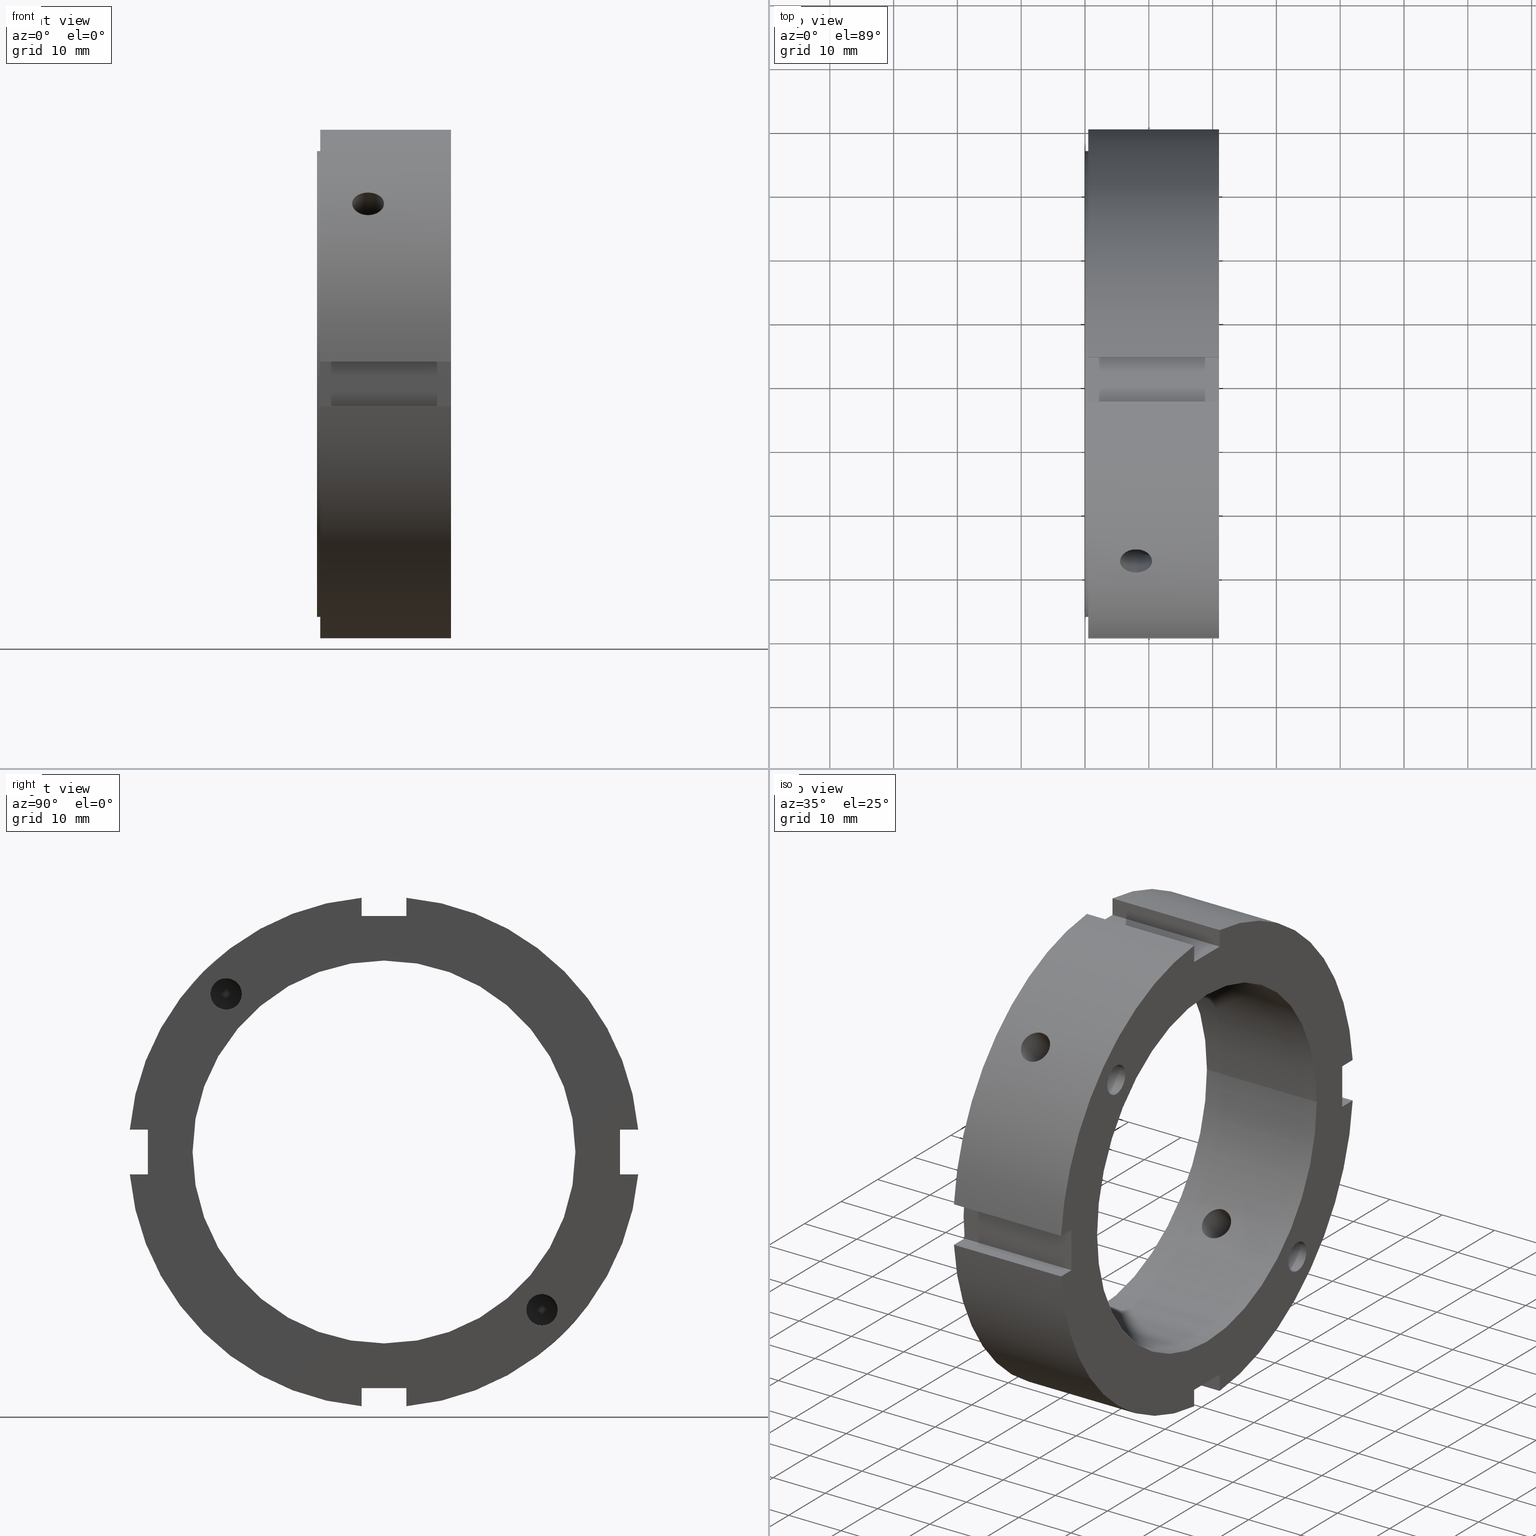
[diagram: canonical four-view strip — front | top / right | iso, engineering-drawing reading convention]
A machine part, canonical four-view strip (front | top / right | iso — engineering-drawing reading convention). The complete STEP part file that produces these views, byte-faithful:
ISO-10303-21;
HEADER;
/****************************************************************
 * Generated by software with PDElib inside                    *
 * PDElib Version v51a, created Wed 11/30/2011                  *
 * ITI Transcendata (http://www.transcendata.com/)              *
 ****************************************************************/
FILE_DESCRIPTION((''),'2;1');
FILE_NAME('C:\\Users\\sugidesign\\Documents\\Fukuda\\3Ddata\\ZMVtype\\FKD ZMV60.stp','2014-02-22T15:25:20',('sugidesign'),(''),'Autodesk Inventor LT ','Autodesk Inventor LT ','');
FILE_SCHEMA(('CONFIG_CONTROL_DESIGN'));
ENDSEC;
DATA;
#5=APPLICATION_CONTEXT('configuration controlled 3D designs of mechanical parts and assemblies');
#6=APPLICATION_PROTOCOL_DEFINITION('International Standard','ap203_configuration_controlled_3d_design_of_mechanical_parts_and_assemblies_mim_lf',2004,#5);
#7=PRODUCT_CONTEXT('',#5,'mechanical');
#8=PRODUCT('FKD ZMV60','FKD ZMV60',$,(#7));
#9=PRODUCT_RELATED_PRODUCT_CATEGORY('part',$,(#8));
#10=PRODUCT_DEFINITION_FORMATION('',$,#8);
#11=PRODUCT_DEFINITION_CONTEXT('part definition',#5,'design');
#12=PRODUCT_DEFINITION('',$,#10,#11);
#18=(NAMED_UNIT(*)PLANE_ANGLE_UNIT()SI_UNIT($,.RADIAN.));
#19=DIMENSIONAL_EXPONENTS(0.0,0.0,0.0,0.0,0.0,0.0,0.0);
#20=PLANE_ANGLE_MEASURE_WITH_UNIT(PLANE_ANGLE_MEASURE(0.0174532925),#18);
#24=(CONVERSION_BASED_UNIT('DEGREE',#20)NAMED_UNIT(#19)PLANE_ANGLE_UNIT());
#28=(NAMED_UNIT(*)SI_UNIT($,.STERADIAN.)SOLID_ANGLE_UNIT());
#32=(LENGTH_UNIT()NAMED_UNIT(*)SI_UNIT(.MILLI.,.METRE.));
#34=UNCERTAINTY_MEASURE_WITH_UNIT(LENGTH_MEASURE(0.01),#32,'DISTANCE_ACCURACY_VALUE','');
#36=(GEOMETRIC_REPRESENTATION_CONTEXT(3)GLOBAL_UNCERTAINTY_ASSIGNED_CONTEXT((#34))GLOBAL_UNIT_ASSIGNED_CONTEXT((#24,#28,#32))REPRESENTATION_CONTEXT('None','None'));
#37=AXIS2_PLACEMENT_3D('',#38,#39,#40);
#38=CARTESIAN_POINT('',(0.0,0.0,0.0));
#39=DIRECTION('',(0.0,0.0,1.0));
#40=DIRECTION('',(1.0,0.0,0.0));
#41=SHAPE_REPRESENTATION('',(#37),#36);
#42=PRODUCT_DEFINITION_SHAPE('','',#12);
#43=SHAPE_DEFINITION_REPRESENTATION(#42,#41);
#49=(NAMED_UNIT(*)PLANE_ANGLE_UNIT()SI_UNIT($,.RADIAN.));
#50=DIMENSIONAL_EXPONENTS(0.0,0.0,0.0,0.0,0.0,0.0,0.0);
#51=PLANE_ANGLE_MEASURE_WITH_UNIT(PLANE_ANGLE_MEASURE(0.0174532925),#49);
#55=(CONVERSION_BASED_UNIT('DEGREE',#51)NAMED_UNIT(#50)PLANE_ANGLE_UNIT());
#59=(NAMED_UNIT(*)SI_UNIT($,.STERADIAN.)SOLID_ANGLE_UNIT());
#63=(LENGTH_UNIT()NAMED_UNIT(*)SI_UNIT(.MILLI.,.METRE.));
#65=UNCERTAINTY_MEASURE_WITH_UNIT(LENGTH_MEASURE(0.000001),#63,'DISTANCE_ACCURACY_VALUE','');
#67=(GEOMETRIC_REPRESENTATION_CONTEXT(3)GLOBAL_UNCERTAINTY_ASSIGNED_CONTEXT((#65))GLOBAL_UNIT_ASSIGNED_CONTEXT((#55,#59,#63))REPRESENTATION_CONTEXT('','3D'));
#68=CARTESIAN_POINT('',(14.499999999999989,-24.748737341529154,24.748737341529168));
#69=DIRECTION('',(-1.0,0.0,0.0));
#70=DIRECTION('',(0.0,-1.0,0.0));
#71=AXIS2_PLACEMENT_3D('',#68,#69,#70);
#72=CYLINDRICAL_SURFACE('',#71,2.4585);
#73=CARTESIAN_POINT('',(20.999999999999986,-27.207237341529154,24.748737341529168));
#74=VERTEX_POINT('',#73);
#75=CARTESIAN_POINT('',(20.999999999999986,-24.748737341529154,24.748737341529168));
#76=DIRECTION('',(-1.0,0.0,0.0));
#77=DIRECTION('',(0.0,-1.0,0.0));
#78=AXIS2_PLACEMENT_3D('',#75,#76,#77);
#79=CIRCLE('',#78,2.4585);
#80=EDGE_CURVE('',#74,#74,#79,.T.);
#81=ORIENTED_EDGE('',*,*,#80,.F.);
#82=EDGE_LOOP('',(#81));
#83=FACE_OUTER_BOUND('',#82,.T.);
#84=CARTESIAN_POINT('',(8.45362732501464,-23.010315319982027,26.487159363076298));
#85=VERTEX_POINT('',#84);
#86=CARTESIAN_POINT('',(8.453627325014676,-23.010315319982027,26.487159363076298));
#87=CARTESIAN_POINT('',(8.453627325014677,-23.083815697917423,26.560659741011694));
#88=CARTESIAN_POINT('',(8.485845144440718,-23.146370942558647,26.614965495670809));
#89=CARTESIAN_POINT('',(8.564508256890282,-23.268714459311806,26.713405338350849));
#90=CARTESIAN_POINT('',(8.612937817032449,-23.328023170062067,26.7565366758366));
#91=CARTESIAN_POINT('',(8.772228880000014,-23.513042951332753,26.879281409454599));
#92=CARTESIAN_POINT('',(8.895505545516915,-23.643053734480244,26.950079575013554));
#93=CARTESIAN_POINT('',(9.283828024816538,-24.072686363863856,27.132864823912996));
#94=CARTESIAN_POINT('',(9.561851096446016,-24.405588102199975,27.207237341529172));
#95=CARTESIAN_POINT('',(9.987347846502066,-25.027480600178805,27.207237341529172));
#96=CARTESIAN_POINT('',(10.170926118717718,-25.343398510354529,27.156678313398203));
#97=CARTESIAN_POINT('',(10.363473477026186,-25.80124565218458,26.976593631506006));
#98=CARTESIAN_POINT('',(10.414345366287382,-25.951455716862171,26.899622169672114));
#99=CARTESIAN_POINT('',(10.482622830029023,-26.23471348631583,26.714624401343862));
#100=CARTESIAN_POINT('',(10.499999999999989,-26.367749307569561,26.60656941858301));
#101=CARTESIAN_POINT('',(10.499999999999993,-26.606569418582993,26.367749307569575));
#102=CARTESIAN_POINT('',(10.48262283002903,-26.714624401343844,26.234713486315858));
#103=CARTESIAN_POINT('',(10.414345366287387,-26.899622169672096,25.951455716862192));
#104=CARTESIAN_POINT('',(10.363473477026188,-26.976593631505995,25.801245652184591));
#105=CARTESIAN_POINT('',(10.170926118717723,-27.156678313398196,25.34339851035454));
#106=CARTESIAN_POINT('',(9.987347846502084,-27.207237341529154,25.027480600178812));
#107=CARTESIAN_POINT('',(9.561851096446052,-27.207237341529154,24.405588102200003));
#108=CARTESIAN_POINT('',(9.283828024816575,-27.132864823912996,24.072686363863891));
#109=CARTESIAN_POINT('',(8.895505545516979,-26.950079575013564,23.643053734480283));
#110=CARTESIAN_POINT('',(8.772228880000116,-26.879281409454585,23.513042951332771));
#111=CARTESIAN_POINT('',(8.612937817032565,-26.756536675836585,23.328023170062075));
#112=CARTESIAN_POINT('',(8.564508256890392,-26.713405338350846,23.268714459311838));
#113=CARTESIAN_POINT('',(8.485845144440843,-26.614965495670802,23.146370942558679));
#114=CARTESIAN_POINT('',(8.453627325014812,-26.560659741011673,23.083815697917448));
#115=CARTESIAN_POINT('',(8.453627325014812,-26.413658985140881,22.936814942046656));
#116=CARTESIAN_POINT('',(8.485845144440825,-26.351103740499656,22.882509187387519));
#117=CARTESIAN_POINT('',(8.564508256890374,-26.228760223746498,22.784069344707479));
#118=CARTESIAN_POINT('',(8.612937817032561,-26.16945151299625,22.740938007221743));
#119=CARTESIAN_POINT('',(8.772228880000109,-25.984431731725557,22.618193273603744));
#120=CARTESIAN_POINT('',(8.89550554551697,-25.854420948578053,22.547395108044768));
#121=CARTESIAN_POINT('',(9.28382802481657,-25.424788319194445,22.364609859145336));
#122=CARTESIAN_POINT('',(9.561851096446052,-25.091886580858336,22.290237341529181));
#123=CARTESIAN_POINT('',(9.987347846502082,-24.469994082879523,22.290237341529181));
#124=CARTESIAN_POINT('',(10.170926118717729,-24.154076172703785,22.340796369660126));
#125=CARTESIAN_POINT('',(10.363473477026194,-23.696229030873734,22.520881051552326));
#126=CARTESIAN_POINT('',(10.414345366287385,-23.546018966196137,22.597852513386218));
#127=CARTESIAN_POINT('',(10.482622830029026,-23.262761196742481,22.782850281714467));
#128=CARTESIAN_POINT('',(10.499999999999991,-23.12972537548875,22.890905264475311));
#129=CARTESIAN_POINT('',(10.499999999999991,-22.890905264475311,23.129725375488754));
#130=CARTESIAN_POINT('',(10.482622830029024,-22.782850281714463,23.262761196742481));
#131=CARTESIAN_POINT('',(10.414345366287383,-22.597852513386215,23.546018966196144));
#132=CARTESIAN_POINT('',(10.363473477026183,-22.520881051552315,23.696229030873738));
#133=CARTESIAN_POINT('',(10.170926118717711,-22.340796369660119,24.154076172703803));
#134=CARTESIAN_POINT('',(9.987347846502059,-22.290237341529156,24.469994082879538));
#135=CARTESIAN_POINT('',(9.561851096446008,-22.290237341529156,25.091886580858368));
#136=CARTESIAN_POINT('',(9.283828024816515,-22.364609859145332,25.424788319194491));
#137=CARTESIAN_POINT('',(8.895505545516897,-22.547395108044771,25.854420948578095));
#138=CARTESIAN_POINT('',(8.772228880000023,-22.618193273603747,25.984431731725593));
#139=CARTESIAN_POINT('',(8.612937817032462,-22.74093800722174,26.169451512996282));
#140=CARTESIAN_POINT('',(8.564508256890287,-22.784069344707476,26.228760223746516));
#141=CARTESIAN_POINT('',(8.485845144440731,-22.882509187387512,26.351103740499674));
#142=CARTESIAN_POINT('',(8.453627325014685,-22.936814942046638,26.413658985140902));
#143=CARTESIAN_POINT('',(8.453627325014686,-23.010315319982034,26.487159363076298));
#144=B_SPLINE_CURVE_WITH_KNOTS('',3,(#86,#87,#88,#89,#90,#91,#92,#93,#94,#95,#96,#97,#98,#99,#100,#101,#102,#103,#104,#105,#106,#107,#108,#109,#110,#111,#112,#113,#114,#115,#116,#117,#118,#119,#120,#121,#122,#123,#124,#125,#126,#127,#128,#129,#130,#131,#132,#133,#134,#135,#136,#137,#138,#139,#140,#141,#142,#143),.UNSPECIFIED.,.T.,.U.,(4,2,2,2,2,2,2,2,2,2,2,2,2,2,2,2,2,2,2,2,2,2,2,2,2,2,2,2,4),(0.0,0.031183569394737,0.062367138789473,0.124734277578947,0.249468555157893,0.350791347146687,0.401452743141084,0.452114139135481,0.502775535129879,0.553436931124276,0.65475972311307,0.77949400069201,0.84186113948148,0.873044708876215,0.904228278270951,0.935411847665686,0.966595417060421,1.028962555849891,1.153696833428832,1.255019625417626,1.305681021412023,1.35634241740642,1.407003813400818,1.457665209395216,1.558988001384012,1.683722278962959,1.746089417752432,1.777272987147168,1.808456556541905),.UNSPECIFIED.);
#145=EDGE_CURVE('',#85,#85,#144,.T.);
#146=ORIENTED_EDGE('',*,*,#145,.F.);
#147=EDGE_LOOP('',(#146));
#148=FACE_BOUND('',#147,.T.);
#149=ADVANCED_FACE('',(#83,#148),#72,.F.);
#150=CARTESIAN_POINT('',(7.999999999999991,-81.064788903691095,81.06478890369111));
#151=DIRECTION('',(0.0,-0.707106781186547,0.707106781186548));
#152=DIRECTION('',(1.0,0.0,0.0));
#153=AXIS2_PLACEMENT_3D('',#150,#151,#152);
#154=CYLINDRICAL_SURFACE('',#153,2.5);
#155=CARTESIAN_POINT('',(7.999999999999991,-29.996741429556906,26.461207523624168));
#156=VERTEX_POINT('',#155);
#157=CARTESIAN_POINT('',(7.999999999999993,-29.996741429556902,26.461207523624175));
#158=CARTESIAN_POINT('',(7.686006548540409,-29.996741429556902,26.461207523624175));
#159=CARTESIAN_POINT('',(7.351139883673479,-29.955246475201367,26.508480523734569));
#160=CARTESIAN_POINT('',(6.735215784478877,-29.785256782813292,26.699340992271324));
#161=CARTESIAN_POINT('',(6.454151401730623,-29.656614631187587,26.842774684235575));
#162=CARTESIAN_POINT('',(6.010314806938181,-29.356658223549719,27.17049800843067));
#163=CARTESIAN_POINT('',(5.81792804547574,-29.16530511918581,27.376630038751848));
#164=CARTESIAN_POINT('',(5.562768378785594,-28.740201856602248,27.822575226151727));
#165=CARTESIAN_POINT('',(5.499999999999991,-28.506298031579533,28.062244463344275));
#166=CARTESIAN_POINT('',(5.499999999999991,-28.062244463344264,28.506298031579536));
#167=CARTESIAN_POINT('',(5.562768378785597,-27.822575226151717,28.740201856602262));
#168=CARTESIAN_POINT('',(5.817928045475744,-27.376630038751838,29.165305119185824));
#169=CARTESIAN_POINT('',(6.010314806938178,-27.170498008430656,29.356658223549722));
#170=CARTESIAN_POINT('',(6.454151401730616,-26.842774684235561,29.656614631187594));
#171=CARTESIAN_POINT('',(6.735215784478875,-26.699340992271317,29.785256782813299));
#172=CARTESIAN_POINT('',(7.351139883673477,-26.508480523734566,29.955246475201378));
#173=CARTESIAN_POINT('',(7.686006548540407,-26.461207523624172,29.996741429556906));
#174=CARTESIAN_POINT('',(8.313993451459576,-26.461207523624172,29.996741429556906));
#175=CARTESIAN_POINT('',(8.648860116326507,-26.508480523734566,29.955246475201378));
#176=CARTESIAN_POINT('',(9.264784215521107,-26.699340992271313,29.785256782813299));
#177=CARTESIAN_POINT('',(9.545848598269362,-26.842774684235561,29.656614631187594));
#178=CARTESIAN_POINT('',(9.989685193061805,-27.170498008430656,29.356658223549722));
#179=CARTESIAN_POINT('',(10.18207195452424,-27.376630038751838,29.165305119185824));
#180=CARTESIAN_POINT('',(10.437231621214384,-27.822575226151717,28.740201856602262));
#181=CARTESIAN_POINT('',(10.499999999999993,-28.062244463344264,28.506298031579536));
#182=CARTESIAN_POINT('',(10.499999999999989,-28.506298031579533,28.062244463344275));
#183=CARTESIAN_POINT('',(10.437231621214387,-28.740201856602248,27.822575226151724));
#184=CARTESIAN_POINT('',(10.18207195452424,-29.165305119185806,27.376630038751848));
#185=CARTESIAN_POINT('',(9.989685193061803,-29.356658223549719,27.17049800843067));
#186=CARTESIAN_POINT('',(9.545848598269359,-29.656614631187587,26.842774684235575));
#187=CARTESIAN_POINT('',(9.264784215521107,-29.785256782813292,26.699340992271324));
#188=CARTESIAN_POINT('',(8.648860116326505,-29.955246475201367,26.508480523734569));
#189=CARTESIAN_POINT('',(8.313993451459576,-29.996741429556899,26.461207523624175));
#190=CARTESIAN_POINT('',(7.999999999999991,-29.996741429556899,26.461207523624175));
#191=B_SPLINE_CURVE_WITH_KNOTS('',3,(#157,#158,#159,#160,#161,#162,#163,#164,#165,#166,#167,#168,#169,#170,#171,#172,#173,#174,#175,#176,#177,#178,#179,#180,#181,#182,#183,#184,#185,#186,#187,#188,#189,#190),.UNSPECIFIED.,.T.,.U.,(4,2,2,2,2,2,2,2,2,2,2,2,2,2,2,2,4),(0.0,0.094198035437875,0.18839607087575,0.282594057668522,0.376792044461293,0.470990031254064,0.565188018046836,0.659386053484711,0.753584088922586,0.847782124360461,0.941980159798336,1.036178146591108,1.13037613338388,1.224574120176651,1.318772106969422,1.412970142407297,1.507168177845172),.UNSPECIFIED.);
#192=EDGE_CURVE('',#156,#156,#191,.T.);
#193=ORIENTED_EDGE('',*,*,#192,.F.);
#194=EDGE_LOOP('',(#193));
#195=FACE_OUTER_BOUND('',#194,.T.);
#196=ORIENTED_EDGE('',*,*,#145,.T.);
#197=EDGE_LOOP('',(#196));
#198=FACE_BOUND('',#197,.T.);
#199=CARTESIAN_POINT('',(7.999999999999991,-22.907185109576073,19.371651203643335));
#200=VERTEX_POINT('',#199);
#201=CARTESIAN_POINT('',(7.999999999999991,-22.907185109576069,19.371651203643339));
#202=CARTESIAN_POINT('',(8.314062136681343,-22.907185109576069,19.371651203643339));
#203=CARTESIAN_POINT('',(8.64895820399304,-22.866642022119731,19.419913976315268));
#204=CARTESIAN_POINT('',(9.26486326711137,-22.700135798433298,19.614285888064625));
#205=CARTESIAN_POINT('',(9.545884679539965,-22.573976205629364,19.76018728529958));
#206=CARTESIAN_POINT('',(9.989648863222188,-22.278709901256093,20.092498307985139));
#207=CARTESIAN_POINT('',(10.182025315896423,-22.089853568551074,20.301066494923624));
#208=CARTESIAN_POINT('',(10.437204907844288,-21.668241122842026,20.750476094595165));
#209=CARTESIAN_POINT('',(10.499999999999991,-21.435278538670964,20.991128332521889));
#210=CARTESIAN_POINT('',(10.499999999999991,-20.991128332521885,21.435278538670968));
#211=CARTESIAN_POINT('',(10.43720490784429,-20.750476094595157,21.668241122842034));
#212=CARTESIAN_POINT('',(10.182025315896425,-20.301066494923617,22.089853568551089));
#213=CARTESIAN_POINT('',(9.98964886322219,-20.092498307985128,22.2787099012561));
#214=CARTESIAN_POINT('',(9.545884679539967,-19.760187285299565,22.573976205629364));
#215=CARTESIAN_POINT('',(9.264863267111375,-19.614285888064622,22.700135798433308));
#216=CARTESIAN_POINT('',(8.648958203993047,-19.419913976315261,22.866642022119738));
#217=CARTESIAN_POINT('',(8.314062136681343,-19.371651203643339,22.907185109576069));
#218=CARTESIAN_POINT('',(7.685937863318639,-19.371651203643339,22.907185109576069));
#219=CARTESIAN_POINT('',(7.351041796006939,-19.419913976315264,22.866642022119738));
#220=CARTESIAN_POINT('',(6.73513673288861,-19.614285888064622,22.700135798433308));
#221=CARTESIAN_POINT('',(6.454115320460017,-19.760187285299565,22.573976205629364));
#222=CARTESIAN_POINT('',(6.010351136777794,-20.092498307985124,22.278709901256097));
#223=CARTESIAN_POINT('',(5.817974684103558,-20.301066494923617,22.089853568551089));
#224=CARTESIAN_POINT('',(5.562795092155693,-20.750476094595154,21.668241122842034));
#225=CARTESIAN_POINT('',(5.499999999999991,-20.991128332521882,21.435278538670968));
#226=CARTESIAN_POINT('',(5.499999999999991,-21.435278538670964,20.991128332521889));
#227=CARTESIAN_POINT('',(5.562795092155694,-21.668241122842026,20.750476094595168));
#228=CARTESIAN_POINT('',(5.817974684103559,-22.089853568551074,20.301066494923624));
#229=CARTESIAN_POINT('',(6.010351136777794,-22.278709901256093,20.092498307985139));
#230=CARTESIAN_POINT('',(6.454115320460018,-22.573976205629364,19.760187285299583));
#231=CARTESIAN_POINT('',(6.735136732888614,-22.700135798433298,19.614285888064625));
#232=CARTESIAN_POINT('',(7.351041796006943,-22.866642022119731,19.419913976315271));
#233=CARTESIAN_POINT('',(7.685937863318639,-22.907185109576069,19.371651203643339));
#234=CARTESIAN_POINT('',(7.999999999999991,-22.907185109576069,19.371651203643339));
#235=B_SPLINE_CURVE_WITH_KNOTS('',3,(#201,#202,#203,#204,#205,#206,#207,#208,#209,#210,#211,#212,#213,#214,#215,#216,#217,#218,#219,#220,#221,#222,#223,#224,#225,#226,#227,#228,#229,#230,#231,#232,#233,#234),.UNSPECIFIED.,.T.,.U.,(4,2,2,2,2,2,2,2,2,2,2,2,2,2,2,2,4),(0.0,0.094218641004406,0.188437282008812,0.282655768798836,0.376874255588861,0.471092742378887,0.565311229168912,0.659529870173317,0.753748511177723,0.847967152182128,0.942185793186534,1.036404279976559,1.130622766766585,1.22484125355661,1.319059740346634,1.41327838135104,1.507497022355446),.UNSPECIFIED.);
#236=EDGE_CURVE('',#200,#200,#235,.T.);
#237=ORIENTED_EDGE('',*,*,#236,.F.);
#238=EDGE_LOOP('',(#237));
#239=FACE_BOUND('',#238,.T.);
#240=ADVANCED_FACE('',(#195,#198,#239),#154,.F.);
#241=CARTESIAN_POINT('',(14.499999999999989,24.748737341529164,-24.748737341529157));
#242=DIRECTION('',(1.0,0.0,0.0));
#243=DIRECTION('',(0.0,0.0,-1.0));
#244=AXIS2_PLACEMENT_3D('',#241,#242,#243);
#245=CYLINDRICAL_SURFACE('',#244,2.4585);
#246=CARTESIAN_POINT('',(8.453627325014649,26.487159363076298,-23.010315319982034));
#247=VERTEX_POINT('',#246);
#248=CARTESIAN_POINT('',(8.453627325014649,26.487159363076298,-23.010315319982034));
#249=CARTESIAN_POINT('',(8.453627325014647,26.413658985140902,-22.936814942046638));
#250=CARTESIAN_POINT('',(8.485845144440729,26.351103740499671,-22.882509187387519));
#251=CARTESIAN_POINT('',(8.564508256890285,26.228760223746512,-22.784069344707479));
#252=CARTESIAN_POINT('',(8.612937817032462,26.169451512996279,-22.740938007221743));
#253=CARTESIAN_POINT('',(8.772228880000023,25.984431731725589,-22.618193273603751));
#254=CARTESIAN_POINT('',(8.895505545516897,25.854420948578092,-22.547395108044775));
#255=CARTESIAN_POINT('',(9.283828024816515,25.424788319194484,-22.364609859145336));
#256=CARTESIAN_POINT('',(9.561851096446008,25.091886580858365,-22.29023734152916));
#257=CARTESIAN_POINT('',(9.987347846502059,24.469994082879531,-22.29023734152916));
#258=CARTESIAN_POINT('',(10.170926118717711,24.154076172703796,-22.340796369660122));
#259=CARTESIAN_POINT('',(10.363473477026183,23.696229030873734,-22.520881051552315));
#260=CARTESIAN_POINT('',(10.414345366287383,23.546018966196137,-22.597852513386222));
#261=CARTESIAN_POINT('',(10.482622830029024,23.262761196742478,-22.782850281714474));
#262=CARTESIAN_POINT('',(10.499999999999989,23.129725375488746,-22.890905264475315));
#263=CARTESIAN_POINT('',(10.499999999999991,22.890905264475311,-23.129725375488754));
#264=CARTESIAN_POINT('',(10.482622830029026,22.782850281714467,-23.262761196742478));
#265=CARTESIAN_POINT('',(10.414345366287385,22.597852513386218,-23.546018966196133));
#266=CARTESIAN_POINT('',(10.363473477026194,22.520881051552323,-23.696229030873738));
#267=CARTESIAN_POINT('',(10.170926118717729,22.340796369660122,-24.154076172703789));
#268=CARTESIAN_POINT('',(9.987347846502082,22.290237341529178,-24.469994082879527));
#269=CARTESIAN_POINT('',(9.561851096446052,22.290237341529178,-25.091886580858343));
#270=CARTESIAN_POINT('',(9.28382802481657,22.364609859145332,-25.424788319194448));
#271=CARTESIAN_POINT('',(8.89550554551697,22.547395108044764,-25.854420948578056));
#272=CARTESIAN_POINT('',(8.772228880000109,22.61819327360374,-25.984431731725564));
#273=CARTESIAN_POINT('',(8.612937817032561,22.74093800722174,-26.169451512996254));
#274=CARTESIAN_POINT('',(8.564508256890374,22.784069344707476,-26.228760223746505));
#275=CARTESIAN_POINT('',(8.485845144440825,22.882509187387512,-26.35110374049966));
#276=CARTESIAN_POINT('',(8.453627325014812,22.936814942046652,-26.413658985140884));
#277=CARTESIAN_POINT('',(8.453627325014812,23.083815697917444,-26.560659741011676));
#278=CARTESIAN_POINT('',(8.48584514444083,23.146370942558679,-26.614965495670813));
#279=CARTESIAN_POINT('',(8.564508256890388,23.268714459311841,-26.713405338350857));
#280=CARTESIAN_POINT('',(8.612937817032549,23.328023170062089,-26.7565366758366));
#281=CARTESIAN_POINT('',(8.772228880000098,23.513042951332785,-26.879281409454595));
#282=CARTESIAN_POINT('',(8.895505545516979,23.643053734480279,-26.950079575013568));
#283=CARTESIAN_POINT('',(9.283828024816579,24.072686363863891,-27.132864823913));
#284=CARTESIAN_POINT('',(9.56185109644605,24.405588102200007,-27.207237341529165));
#285=CARTESIAN_POINT('',(9.987347846502084,25.027480600178819,-27.207237341529165));
#286=CARTESIAN_POINT('',(10.17092611871773,25.343398510354547,-27.156678313398189));
#287=CARTESIAN_POINT('',(10.363473477026195,25.801245652184591,-26.976593631505992));
#288=CARTESIAN_POINT('',(10.414345366287389,25.951455716862192,-26.899622169672099));
#289=CARTESIAN_POINT('',(10.48262283002903,26.234713486315854,-26.714624401343848));
#290=CARTESIAN_POINT('',(10.499999999999993,26.367749307569571,-26.606569418582996));
#291=CARTESIAN_POINT('',(10.499999999999989,26.606569418583007,-26.367749307569564));
#292=CARTESIAN_POINT('',(10.482622830029023,26.714624401343858,-26.234713486315833));
#293=CARTESIAN_POINT('',(10.414345366287382,26.899622169672107,-25.951455716862174));
#294=CARTESIAN_POINT('',(10.363473477026186,26.976593631505999,-25.801245652184583));
#295=CARTESIAN_POINT('',(10.170926118717718,27.156678313398199,-25.343398510354533));
#296=CARTESIAN_POINT('',(9.987347846502072,27.207237341529158,-25.027480600178809));
#297=CARTESIAN_POINT('',(9.561851096446025,27.207237341529158,-24.405588102199978));
#298=CARTESIAN_POINT('',(9.283828024816538,27.132864823913,-24.072686363863866));
#299=CARTESIAN_POINT('',(8.895505545516913,26.950079575013561,-23.643053734480254));
#300=CARTESIAN_POINT('',(8.772228880000011,26.879281409454595,-23.513042951332757));
#301=CARTESIAN_POINT('',(8.612937817032446,26.756536675836596,-23.328023170062071));
#302=CARTESIAN_POINT('',(8.56450825689029,26.713405338350839,-23.268714459311806));
#303=CARTESIAN_POINT('',(8.485845144440729,26.614965495670798,-23.146370942558647));
#304=CARTESIAN_POINT('',(8.453627325014651,26.56065974101169,-23.08381569791743));
#305=CARTESIAN_POINT('',(8.453627325014651,26.487159363076294,-23.010315319982034));
#306=B_SPLINE_CURVE_WITH_KNOTS('',3,(#248,#249,#250,#251,#252,#253,#254,#255,#256,#257,#258,#259,#260,#261,#262,#263,#264,#265,#266,#267,#268,#269,#270,#271,#272,#273,#274,#275,#276,#277,#278,#279,#280,#281,#282,#283,#284,#285,#286,#287,#288,#289,#290,#291,#292,#293,#294,#295,#296,#297,#298,#299,#300,#301,#302,#303,#304,#305),.UNSPECIFIED.,.T.,.U.,(4,2,2,2,2,2,2,2,2,2,2,2,2,2,2,2,2,2,2,2,2,2,2,2,2,2,2,2,4),(0.0,0.031183569394737,0.062367138789473,0.124734277578946,0.249468555157892,0.350791347146688,0.401452743141086,0.452114139135485,0.502775535129882,0.553436931124279,0.654759723113073,0.779494000692013,0.841861139481484,0.873044708876219,0.904228278270954,0.935411847665689,0.966595417060425,1.028962555849895,1.153696833428836,1.25501962541763,1.305681021412027,1.356342417406424,1.407003813400821,1.457665209395217,1.558988001384011,1.683722278962958,1.746089417752432,1.777272987147168,1.808456556541905),.UNSPECIFIED.);
#307=EDGE_CURVE('',#247,#247,#306,.T.);
#308=ORIENTED_EDGE('',*,*,#307,.F.);
#309=EDGE_LOOP('',(#308));
#310=FACE_OUTER_BOUND('',#309,.T.);
#311=CARTESIAN_POINT('',(20.999999999999986,24.748737341529164,-27.207237341529158));
#312=VERTEX_POINT('',#311);
#313=CARTESIAN_POINT('',(20.999999999999986,24.748737341529164,-24.748737341529157));
#314=DIRECTION('',(-1.0,0.0,0.0));
#315=DIRECTION('',(0.0,0.0,-1.0));
#316=AXIS2_PLACEMENT_3D('',#313,#314,#315);
#317=CIRCLE('',#316,2.4585);
#318=EDGE_CURVE('',#312,#312,#317,.T.);
#319=ORIENTED_EDGE('',*,*,#318,.F.);
#320=EDGE_LOOP('',(#319));
#321=FACE_BOUND('',#320,.T.);
#322=ADVANCED_FACE('',(#310,#321),#245,.F.);
#323=CARTESIAN_POINT('',(7.999999999999991,81.064788903691095,-81.06478890369111));
#324=DIRECTION('',(0.0,-0.707106781186547,0.707106781186548));
#325=DIRECTION('',(1.0,0.0,0.0));
#326=AXIS2_PLACEMENT_3D('',#323,#324,#325);
#327=CYLINDRICAL_SURFACE('',#326,2.5);
#328=CARTESIAN_POINT('',(7.999999999999991,26.461207523624161,-29.996741429556909));
#329=VERTEX_POINT('',#328);
#330=CARTESIAN_POINT('',(7.999999999999991,26.461207523624161,-29.996741429556909));
#331=CARTESIAN_POINT('',(8.313993451459576,26.461207523624161,-29.996741429556909));
#332=CARTESIAN_POINT('',(8.648860116326508,26.508480523734562,-29.955246475201378));
#333=CARTESIAN_POINT('',(9.264784215521107,26.699340992271313,-29.785256782813299));
#334=CARTESIAN_POINT('',(9.545848598269364,26.842774684235561,-29.656614631187594));
#335=CARTESIAN_POINT('',(9.989685193061806,27.170498008430656,-29.356658223549722));
#336=CARTESIAN_POINT('',(10.18207195452424,27.376630038751838,-29.165305119185824));
#337=CARTESIAN_POINT('',(10.437231621214384,27.822575226151717,-28.740201856602262));
#338=CARTESIAN_POINT('',(10.499999999999993,28.062244463344264,-28.506298031579536));
#339=CARTESIAN_POINT('',(10.499999999999989,28.506298031579533,-28.062244463344275));
#340=CARTESIAN_POINT('',(10.437231621214387,28.740201856602248,-27.822575226151724));
#341=CARTESIAN_POINT('',(10.18207195452424,29.165305119185806,-27.376630038751848));
#342=CARTESIAN_POINT('',(9.989685193061803,29.356658223549719,-27.17049800843067));
#343=CARTESIAN_POINT('',(9.545848598269362,29.656614631187594,-26.842774684235575));
#344=CARTESIAN_POINT('',(9.264784215521104,29.785256782813295,-26.699340992271324));
#345=CARTESIAN_POINT('',(8.648860116326501,29.955246475201371,-26.508480523734569));
#346=CARTESIAN_POINT('',(8.313993451459576,29.996741429556902,-26.461207523624175));
#347=CARTESIAN_POINT('',(7.686006548540407,29.996741429556902,-26.461207523624175));
#348=CARTESIAN_POINT('',(7.351139883673479,29.955246475201367,-26.508480523734569));
#349=CARTESIAN_POINT('',(6.735215784478877,29.785256782813292,-26.699340992271324));
#350=CARTESIAN_POINT('',(6.454151401730623,29.656614631187587,-26.842774684235575));
#351=CARTESIAN_POINT('',(6.010314806938181,29.356658223549719,-27.17049800843067));
#352=CARTESIAN_POINT('',(5.817928045475744,29.16530511918581,-27.376630038751845));
#353=CARTESIAN_POINT('',(5.562768378785595,28.740201856602248,-27.822575226151724));
#354=CARTESIAN_POINT('',(5.499999999999993,28.506298031579533,-28.062244463344275));
#355=CARTESIAN_POINT('',(5.499999999999991,28.062244463344264,-28.506298031579536));
#356=CARTESIAN_POINT('',(5.562768378785598,27.82257522615172,-28.740201856602255));
#357=CARTESIAN_POINT('',(5.817928045475743,27.376630038751841,-29.16530511918582));
#358=CARTESIAN_POINT('',(6.010314806938178,27.170498008430659,-29.356658223549729));
#359=CARTESIAN_POINT('',(6.454151401730618,26.842774684235565,-29.656614631187598));
#360=CARTESIAN_POINT('',(6.735215784478873,26.699340992271317,-29.785256782813299));
#361=CARTESIAN_POINT('',(7.351139883673477,26.508480523734566,-29.955246475201378));
#362=CARTESIAN_POINT('',(7.686006548540406,26.461207523624161,-29.996741429556909));
#363=CARTESIAN_POINT('',(7.99999999999999,26.461207523624161,-29.996741429556909));
#364=B_SPLINE_CURVE_WITH_KNOTS('',3,(#330,#331,#332,#333,#334,#335,#336,#337,#338,#339,#340,#341,#342,#343,#344,#345,#346,#347,#348,#349,#350,#351,#352,#353,#354,#355,#356,#357,#358,#359,#360,#361,#362,#363),.UNSPECIFIED.,.T.,.U.,(4,2,2,2,2,2,2,2,2,2,2,2,2,2,2,2,4),(0.0,0.094198035437875,0.18839607087575,0.282594057668522,0.376792044461293,0.470990031254065,0.565188018046836,0.659386053484711,0.753584088922586,0.847782124360462,0.941980159798337,1.036178146591108,1.130376133383879,1.224574120176651,1.318772106969422,1.412970142407297,1.507168177845172),.UNSPECIFIED.);
#365=EDGE_CURVE('',#329,#329,#364,.T.);
#366=ORIENTED_EDGE('',*,*,#365,.F.);
#367=EDGE_LOOP('',(#366));
#368=FACE_OUTER_BOUND('',#367,.T.);
#369=ORIENTED_EDGE('',*,*,#307,.T.);
#370=EDGE_LOOP('',(#369));
#371=FACE_BOUND('',#370,.T.);
#372=CARTESIAN_POINT('',(7.999999999999991,19.371651203643331,-22.907185109576076));
#373=VERTEX_POINT('',#372);
#374=CARTESIAN_POINT('',(7.999999999999991,19.371651203643331,-22.907185109576076));
#375=CARTESIAN_POINT('',(7.685937863318639,19.371651203643331,-22.907185109576076));
#376=CARTESIAN_POINT('',(7.351041796006936,19.419913976315261,-22.866642022119738));
#377=CARTESIAN_POINT('',(6.735136732888608,19.614285888064622,-22.700135798433308));
#378=CARTESIAN_POINT('',(6.454115320460017,19.760187285299565,-22.573976205629364));
#379=CARTESIAN_POINT('',(6.010351136777794,20.092498307985128,-22.2787099012561));
#380=CARTESIAN_POINT('',(5.817974684103558,20.301066494923617,-22.089853568551089));
#381=CARTESIAN_POINT('',(5.562795092155692,20.750476094595157,-21.668241122842034));
#382=CARTESIAN_POINT('',(5.499999999999991,20.991128332521885,-21.435278538670968));
#383=CARTESIAN_POINT('',(5.499999999999991,21.435278538670964,-20.991128332521889));
#384=CARTESIAN_POINT('',(5.562795092155696,21.668241122842026,-20.750476094595165));
#385=CARTESIAN_POINT('',(5.817974684103559,22.089853568551074,-20.301066494923624));
#386=CARTESIAN_POINT('',(6.010351136777794,22.278709901256093,-20.092498307985139));
#387=CARTESIAN_POINT('',(6.454115320460018,22.573976205629364,-19.76018728529958));
#388=CARTESIAN_POINT('',(6.735136732888611,22.700135798433298,-19.614285888064632));
#389=CARTESIAN_POINT('',(7.351041796006942,22.866642022119731,-19.419913976315271));
#390=CARTESIAN_POINT('',(7.685937863318639,22.907185109576069,-19.371651203643339));
#391=CARTESIAN_POINT('',(8.314062136681343,22.907185109576069,-19.371651203643339));
#392=CARTESIAN_POINT('',(8.64895820399304,22.866642022119731,-19.419913976315268));
#393=CARTESIAN_POINT('',(9.26486326711137,22.700135798433298,-19.614285888064625));
#394=CARTESIAN_POINT('',(9.545884679539965,22.573976205629364,-19.76018728529958));
#395=CARTESIAN_POINT('',(9.989648863222188,22.278709901256093,-20.092498307985139));
#396=CARTESIAN_POINT('',(10.182025315896423,22.089853568551074,-20.301066494923624));
#397=CARTESIAN_POINT('',(10.437204907844288,21.668241122842026,-20.750476094595165));
#398=CARTESIAN_POINT('',(10.499999999999991,21.435278538670964,-20.991128332521889));
#399=CARTESIAN_POINT('',(10.499999999999991,20.991128332521885,-21.435278538670968));
#400=CARTESIAN_POINT('',(10.43720490784429,20.750476094595157,-21.668241122842019));
#401=CARTESIAN_POINT('',(10.182025315896423,20.301066494923617,-22.089853568551074));
#402=CARTESIAN_POINT('',(9.98964886322219,20.092498307985128,-22.2787099012561));
#403=CARTESIAN_POINT('',(9.545884679539968,19.760187285299569,-22.573976205629368));
#404=CARTESIAN_POINT('',(9.264863267111371,19.614285888064622,-22.700135798433308));
#405=CARTESIAN_POINT('',(8.648958203993045,19.419913976315264,-22.866642022119738));
#406=CARTESIAN_POINT('',(8.314062136681343,19.371651203643331,-22.907185109576076));
#407=CARTESIAN_POINT('',(7.999999999999991,19.371651203643331,-22.907185109576076));
#408=B_SPLINE_CURVE_WITH_KNOTS('',3,(#374,#375,#376,#377,#378,#379,#380,#381,#382,#383,#384,#385,#386,#387,#388,#389,#390,#391,#392,#393,#394,#395,#396,#397,#398,#399,#400,#401,#402,#403,#404,#405,#406,#407),.UNSPECIFIED.,.T.,.U.,(4,2,2,2,2,2,2,2,2,2,2,2,2,2,2,2,4),(0.0,0.094218641004406,0.188437282008811,0.282655768798836,0.376874255588862,0.471092742378886,0.565311229168911,0.659529870173317,0.753748511177723,0.847967152182129,0.942185793186535,1.036404279976559,1.130622766766584,1.22484125355661,1.319059740346635,1.41327838135104,1.507497022355446),.UNSPECIFIED.);
#409=EDGE_CURVE('',#373,#373,#408,.T.);
#410=ORIENTED_EDGE('',*,*,#409,.F.);
#411=EDGE_LOOP('',(#410));
#412=FACE_BOUND('',#411,.T.);
#413=ADVANCED_FACE('',(#368,#371,#412),#327,.F.);
#414=CARTESIAN_POINT('',(20.999999999999986,-3.500000000000005,-37.0));
#415=DIRECTION('',(0.0,-1.0,0.0));
#416=DIRECTION('',(-1.0,0.0,0.0));
#417=AXIS2_PLACEMENT_3D('',#414,#415,#416);
#418=PLANE('',#417);
#419=CARTESIAN_POINT('',(0.499999999999989,-3.500000000000005,-37.0));
#420=VERTEX_POINT('',#419);
#421=CARTESIAN_POINT('',(0.499999999999989,-3.500000000000006,-39.846580781793556));
#422=VERTEX_POINT('',#421);
#423=CARTESIAN_POINT('',(0.499999999999989,-3.500000000000007,-37.0));
#424=DIRECTION('',(0.0,0.0,-1.0));
#425=VECTOR('',#424,2.846580781793556);
#426=LINE('',#423,#425);
#427=EDGE_CURVE('',#420,#422,#426,.T.);
#428=ORIENTED_EDGE('',*,*,#427,.F.);
#429=CARTESIAN_POINT('',(20.999999999999986,-3.500000000000005,-37.0));
#430=VERTEX_POINT('',#429);
#431=CARTESIAN_POINT('',(20.999999999999986,-3.500000000000005,-37.0));
#432=DIRECTION('',(-1.0,0.0,0.0));
#433=VECTOR('',#432,20.5);
#434=LINE('',#431,#433);
#435=EDGE_CURVE('',#430,#420,#434,.T.);
#436=ORIENTED_EDGE('',*,*,#435,.F.);
#437=CARTESIAN_POINT('',(20.999999999999986,-3.500000000000006,-39.846580781793563));
#438=VERTEX_POINT('',#437);
#439=CARTESIAN_POINT('',(20.999999999999986,-3.500000000000005,-39.846580781793563));
#440=DIRECTION('',(0.0,0.0,1.0));
#441=VECTOR('',#440,2.846580781793563);
#442=LINE('',#439,#441);
#443=EDGE_CURVE('',#438,#430,#442,.T.);
#444=ORIENTED_EDGE('',*,*,#443,.F.);
#445=CARTESIAN_POINT('',(0.499999999999989,-3.500000000000006,-39.846580781793563));
#446=DIRECTION('',(1.0,0.0,0.0));
#447=VECTOR('',#446,20.5);
#448=LINE('',#445,#447);
#449=EDGE_CURVE('',#422,#438,#448,.T.);
#450=ORIENTED_EDGE('',*,*,#449,.F.);
#451=EDGE_LOOP('',(#428,#436,#444,#450));
#452=FACE_OUTER_BOUND('',#451,.T.);
#453=ADVANCED_FACE('',(#452),#418,.F.);
#454=CARTESIAN_POINT('',(20.999999999999986,3.499999999999992,-40.0));
#455=DIRECTION('',(0.0,1.0,0.0));
#456=DIRECTION('',(1.0,0.0,0.0));
#457=AXIS2_PLACEMENT_3D('',#454,#455,#456);
#458=PLANE('',#457);
#459=CARTESIAN_POINT('',(0.499999999999989,3.499999999999992,-39.846580781793556));
#460=VERTEX_POINT('',#459);
#461=CARTESIAN_POINT('',(0.499999999999989,3.499999999999992,-37.0));
#462=VERTEX_POINT('',#461);
#463=CARTESIAN_POINT('',(0.499999999999989,3.499999999999993,-39.846580781793548));
#464=DIRECTION('',(0.0,0.0,1.0));
#465=VECTOR('',#464,2.846580781793549);
#466=LINE('',#463,#465);
#467=EDGE_CURVE('',#460,#462,#466,.T.);
#468=ORIENTED_EDGE('',*,*,#467,.F.);
#469=CARTESIAN_POINT('',(20.999999999999986,3.499999999999992,-39.846580781793563));
#470=VERTEX_POINT('',#469);
#471=CARTESIAN_POINT('',(20.999999999999989,3.499999999999992,-39.846580781793563));
#472=DIRECTION('',(-1.0,0.0,0.0));
#473=VECTOR('',#472,20.5);
#474=LINE('',#471,#473);
#475=EDGE_CURVE('',#470,#460,#474,.T.);
#476=ORIENTED_EDGE('',*,*,#475,.F.);
#477=CARTESIAN_POINT('',(20.999999999999986,3.499999999999992,-37.0));
#478=VERTEX_POINT('',#477);
#479=CARTESIAN_POINT('',(20.999999999999986,3.499999999999993,-37.0));
#480=DIRECTION('',(0.0,0.0,-1.0));
#481=VECTOR('',#480,2.846580781793563);
#482=LINE('',#479,#481);
#483=EDGE_CURVE('',#478,#470,#482,.T.);
#484=ORIENTED_EDGE('',*,*,#483,.F.);
#485=CARTESIAN_POINT('',(20.999999999999986,3.499999999999992,-37.0));
#486=DIRECTION('',(-1.0,0.0,0.0));
#487=VECTOR('',#486,20.5);
#488=LINE('',#485,#487);
#489=EDGE_CURVE('',#478,#462,#488,.T.);
#490=ORIENTED_EDGE('',*,*,#489,.T.);
#491=EDGE_LOOP('',(#468,#476,#484,#490));
#492=FACE_OUTER_BOUND('',#491,.T.);
#493=ADVANCED_FACE('',(#492),#458,.F.);
#494=CARTESIAN_POINT('',(20.999999999999986,3.499999999999992,-37.0));
#495=DIRECTION('',(0.0,0.0,1.0));
#496=DIRECTION('',(0.0,-1.0,0.0));
#497=AXIS2_PLACEMENT_3D('',#494,#495,#496);
#498=PLANE('',#497);
#499=CARTESIAN_POINT('',(0.499999999999989,3.499999999999989,-37.0));
#500=DIRECTION('',(0.0,-1.0,0.0));
#501=VECTOR('',#500,6.999999999999996);
#502=LINE('',#499,#501);
#503=EDGE_CURVE('',#462,#420,#502,.T.);
#504=ORIENTED_EDGE('',*,*,#503,.F.);
#505=ORIENTED_EDGE('',*,*,#489,.F.);
#506=CARTESIAN_POINT('',(20.999999999999986,-3.5,-36.999999999999993));
#507=DIRECTION('',(0.0,1.0,0.0));
#508=VECTOR('',#507,6.999999999999993);
#509=LINE('',#506,#508);
#510=EDGE_CURVE('',#430,#478,#509,.T.);
#511=ORIENTED_EDGE('',*,*,#510,.F.);
#512=ORIENTED_EDGE('',*,*,#435,.T.);
#513=EDGE_LOOP('',(#504,#505,#511,#512));
#514=FACE_OUTER_BOUND('',#513,.T.);
#515=ADVANCED_FACE('',(#514),#498,.F.);
#516=CARTESIAN_POINT('',(20.999999999999986,-37.0,3.500000000000003));
#517=DIRECTION('',(0.0,0.0,1.0));
#518=DIRECTION('',(-1.0,0.0,0.0));
#519=AXIS2_PLACEMENT_3D('',#516,#517,#518);
#520=PLANE('',#519);
#521=CARTESIAN_POINT('',(0.499999999999989,-37.0,3.500000000000003));
#522=VERTEX_POINT('',#521);
#523=CARTESIAN_POINT('',(0.499999999999989,-39.846580781793556,3.500000000000003));
#524=VERTEX_POINT('',#523);
#525=CARTESIAN_POINT('',(0.499999999999989,-37.0,3.500000000000003));
#526=DIRECTION('',(0.0,-1.0,0.0));
#527=VECTOR('',#526,2.846580781793549);
#528=LINE('',#525,#527);
#529=EDGE_CURVE('',#522,#524,#528,.T.);
#530=ORIENTED_EDGE('',*,*,#529,.F.);
#531=CARTESIAN_POINT('',(20.999999999999986,-37.0,3.500000000000003));
#532=VERTEX_POINT('',#531);
#533=CARTESIAN_POINT('',(20.999999999999986,-37.0,3.500000000000003));
#534=DIRECTION('',(-1.0,0.0,0.0));
#535=VECTOR('',#534,20.5);
#536=LINE('',#533,#535);
#537=EDGE_CURVE('',#532,#522,#536,.T.);
#538=ORIENTED_EDGE('',*,*,#537,.F.);
#539=CARTESIAN_POINT('',(20.999999999999986,-39.846580781793563,3.500000000000003));
#540=VERTEX_POINT('',#539);
#541=CARTESIAN_POINT('',(20.999999999999986,-39.846580781793556,3.500000000000004));
#542=DIRECTION('',(0.0,1.0,0.0));
#543=VECTOR('',#542,2.846580781793556);
#544=LINE('',#541,#543);
#545=EDGE_CURVE('',#540,#532,#544,.T.);
#546=ORIENTED_EDGE('',*,*,#545,.F.);
#547=CARTESIAN_POINT('',(0.499999999999989,-39.846580781793563,3.500000000000004));
#548=DIRECTION('',(1.0,0.0,0.0));
#549=VECTOR('',#548,20.5);
#550=LINE('',#547,#549);
#551=EDGE_CURVE('',#524,#540,#550,.T.);
#552=ORIENTED_EDGE('',*,*,#551,.F.);
#553=EDGE_LOOP('',(#530,#538,#546,#552));
#554=FACE_OUTER_BOUND('',#553,.T.);
#555=ADVANCED_FACE('',(#554),#520,.F.);
#556=CARTESIAN_POINT('',(20.999999999999986,-40.0,-3.499999999999994));
#557=DIRECTION('',(0.0,0.0,-1.0));
#558=DIRECTION('',(1.0,0.0,0.0));
#559=AXIS2_PLACEMENT_3D('',#556,#557,#558);
#560=PLANE('',#559);
#561=CARTESIAN_POINT('',(0.499999999999989,-39.846580781793556,-3.499999999999994));
#562=VERTEX_POINT('',#561);
#563=CARTESIAN_POINT('',(0.499999999999989,-37.0,-3.499999999999994));
#564=VERTEX_POINT('',#563);
#565=CARTESIAN_POINT('',(0.499999999999989,-39.846580781793548,-3.499999999999994));
#566=DIRECTION('',(0.0,1.0,0.0));
#567=VECTOR('',#566,2.846580781793549);
#568=LINE('',#565,#567);
#569=EDGE_CURVE('',#562,#564,#568,.T.);
#570=ORIENTED_EDGE('',*,*,#569,.F.);
#571=CARTESIAN_POINT('',(20.999999999999986,-39.846580781793563,-3.499999999999994));
#572=VERTEX_POINT('',#571);
#573=CARTESIAN_POINT('',(20.999999999999989,-39.846580781793563,-3.499999999999994));
#574=DIRECTION('',(-1.0,0.0,0.0));
#575=VECTOR('',#574,20.5);
#576=LINE('',#573,#575);
#577=EDGE_CURVE('',#572,#562,#576,.T.);
#578=ORIENTED_EDGE('',*,*,#577,.F.);
#579=CARTESIAN_POINT('',(20.999999999999986,-37.0,-3.499999999999994));
#580=VERTEX_POINT('',#579);
#581=CARTESIAN_POINT('',(20.999999999999986,-37.0,-3.499999999999994));
#582=DIRECTION('',(0.0,-1.0,0.0));
#583=VECTOR('',#582,2.846580781793563);
#584=LINE('',#581,#583);
#585=EDGE_CURVE('',#580,#572,#584,.T.);
#586=ORIENTED_EDGE('',*,*,#585,.F.);
#587=CARTESIAN_POINT('',(20.999999999999986,-37.0,-3.499999999999994));
#588=DIRECTION('',(-1.0,0.0,0.0));
#589=VECTOR('',#588,20.5);
#590=LINE('',#587,#589);
#591=EDGE_CURVE('',#580,#564,#590,.T.);
#592=ORIENTED_EDGE('',*,*,#591,.T.);
#593=EDGE_LOOP('',(#570,#578,#586,#592));
#594=FACE_OUTER_BOUND('',#593,.T.);
#595=ADVANCED_FACE('',(#594),#560,.F.);
#596=CARTESIAN_POINT('',(20.999999999999986,-37.0,-3.499999999999994));
#597=DIRECTION('',(0.0,1.0,0.0));
#598=DIRECTION('',(0.0,0.0,1.0));
#599=AXIS2_PLACEMENT_3D('',#596,#597,#598);
#600=PLANE('',#599);
#601=CARTESIAN_POINT('',(0.499999999999989,-37.0,-3.499999999999994));
#602=DIRECTION('',(0.0,0.0,1.0));
#603=VECTOR('',#602,6.999999999999997);
#604=LINE('',#601,#603);
#605=EDGE_CURVE('',#564,#522,#604,.T.);
#606=ORIENTED_EDGE('',*,*,#605,.F.);
#607=ORIENTED_EDGE('',*,*,#591,.F.);
#608=CARTESIAN_POINT('',(20.999999999999986,-37.0,3.500000000000003));
#609=DIRECTION('',(0.0,0.0,-1.0));
#610=VECTOR('',#609,6.999999999999996);
#611=LINE('',#608,#610);
#612=EDGE_CURVE('',#532,#580,#611,.T.);
#613=ORIENTED_EDGE('',*,*,#612,.F.);
#614=ORIENTED_EDGE('',*,*,#537,.T.);
#615=EDGE_LOOP('',(#606,#607,#613,#614));
#616=FACE_OUTER_BOUND('',#615,.T.);
#617=ADVANCED_FACE('',(#616),#600,.F.);
#618=CARTESIAN_POINT('',(20.999999999999986,3.500000000000001,37.0));
#619=DIRECTION('',(0.0,1.0,0.0));
#620=DIRECTION('',(-1.0,0.0,0.0));
#621=AXIS2_PLACEMENT_3D('',#618,#619,#620);
#622=PLANE('',#621);
#623=CARTESIAN_POINT('',(0.499999999999989,3.500000000000001,37.0));
#624=VERTEX_POINT('',#623);
#625=CARTESIAN_POINT('',(0.499999999999989,3.500000000000001,39.846580781793556));
#626=VERTEX_POINT('',#625);
#627=CARTESIAN_POINT('',(0.499999999999989,3.5,37.0));
#628=DIRECTION('',(0.0,0.0,1.0));
#629=VECTOR('',#628,2.846580781793556);
#630=LINE('',#627,#629);
#631=EDGE_CURVE('',#624,#626,#630,.T.);
#632=ORIENTED_EDGE('',*,*,#631,.F.);
#633=CARTESIAN_POINT('',(20.999999999999986,3.500000000000001,37.0));
#634=VERTEX_POINT('',#633);
#635=CARTESIAN_POINT('',(20.999999999999986,3.500000000000001,37.0));
#636=DIRECTION('',(-1.0,0.0,0.0));
#637=VECTOR('',#636,20.5);
#638=LINE('',#635,#637);
#639=EDGE_CURVE('',#634,#624,#638,.T.);
#640=ORIENTED_EDGE('',*,*,#639,.F.);
#641=CARTESIAN_POINT('',(20.999999999999986,3.500000000000001,39.846580781793563));
#642=VERTEX_POINT('',#641);
#643=CARTESIAN_POINT('',(20.999999999999986,3.5,39.846580781793563));
#644=DIRECTION('',(0.0,0.0,-1.0));
#645=VECTOR('',#644,2.846580781793563);
#646=LINE('',#643,#645);
#647=EDGE_CURVE('',#642,#634,#646,.T.);
#648=ORIENTED_EDGE('',*,*,#647,.F.);
#649=CARTESIAN_POINT('',(0.499999999999989,3.500000000000001,39.846580781793563));
#650=DIRECTION('',(1.0,0.0,0.0));
#651=VECTOR('',#650,20.5);
#652=LINE('',#649,#651);
#653=EDGE_CURVE('',#626,#642,#652,.T.);
#654=ORIENTED_EDGE('',*,*,#653,.F.);
#655=EDGE_LOOP('',(#632,#640,#648,#654));
#656=FACE_OUTER_BOUND('',#655,.T.);
#657=ADVANCED_FACE('',(#656),#622,.F.);
#658=CARTESIAN_POINT('',(20.999999999999986,-3.499999999999996,40.0));
#659=DIRECTION('',(0.0,-1.0,0.0));
#660=DIRECTION('',(1.0,0.0,0.0));
#661=AXIS2_PLACEMENT_3D('',#658,#659,#660);
#662=PLANE('',#661);
#663=CARTESIAN_POINT('',(0.499999999999989,-3.499999999999996,39.846580781793556));
#664=VERTEX_POINT('',#663);
#665=CARTESIAN_POINT('',(0.499999999999989,-3.499999999999996,37.0));
#666=VERTEX_POINT('',#665);
#667=CARTESIAN_POINT('',(0.499999999999989,-3.499999999999993,39.846580781793556));
#668=DIRECTION('',(0.0,0.0,-1.0));
#669=VECTOR('',#668,2.846580781793556);
#670=LINE('',#667,#669);
#671=EDGE_CURVE('',#664,#666,#670,.T.);
#672=ORIENTED_EDGE('',*,*,#671,.F.);
#673=CARTESIAN_POINT('',(20.999999999999986,-3.499999999999996,39.846580781793563));
#674=VERTEX_POINT('',#673);
#675=CARTESIAN_POINT('',(20.999999999999989,-3.499999999999996,39.846580781793563));
#676=DIRECTION('',(-1.0,0.0,0.0));
#677=VECTOR('',#676,20.5);
#678=LINE('',#675,#677);
#679=EDGE_CURVE('',#674,#664,#678,.T.);
#680=ORIENTED_EDGE('',*,*,#679,.F.);
#681=CARTESIAN_POINT('',(20.999999999999986,-3.499999999999996,37.0));
#682=VERTEX_POINT('',#681);
#683=CARTESIAN_POINT('',(20.999999999999986,-3.499999999999998,37.0));
#684=DIRECTION('',(0.0,0.0,1.0));
#685=VECTOR('',#684,2.846580781793563);
#686=LINE('',#683,#685);
#687=EDGE_CURVE('',#682,#674,#686,.T.);
#688=ORIENTED_EDGE('',*,*,#687,.F.);
#689=CARTESIAN_POINT('',(20.999999999999986,-3.499999999999996,37.0));
#690=DIRECTION('',(-1.0,0.0,0.0));
#691=VECTOR('',#690,20.5);
#692=LINE('',#689,#691);
#693=EDGE_CURVE('',#682,#666,#692,.T.);
#694=ORIENTED_EDGE('',*,*,#693,.T.);
#695=EDGE_LOOP('',(#672,#680,#688,#694));
#696=FACE_OUTER_BOUND('',#695,.T.);
#697=ADVANCED_FACE('',(#696),#662,.F.);
#698=CARTESIAN_POINT('',(20.999999999999986,-3.499999999999996,37.0));
#699=DIRECTION('',(0.0,0.0,-1.0));
#700=DIRECTION('',(0.0,1.0,0.0));
#701=AXIS2_PLACEMENT_3D('',#698,#699,#700);
#702=PLANE('',#701);
#703=CARTESIAN_POINT('',(0.499999999999989,-3.499999999999996,37.0));
#704=DIRECTION('',(0.0,1.0,0.0));
#705=VECTOR('',#704,6.999999999999998);
#706=LINE('',#703,#705);
#707=EDGE_CURVE('',#666,#624,#706,.T.);
#708=ORIENTED_EDGE('',*,*,#707,.F.);
#709=ORIENTED_EDGE('',*,*,#693,.F.);
#710=CARTESIAN_POINT('',(20.999999999999986,3.5,37.0));
#711=DIRECTION('',(0.0,-1.0,0.0));
#712=VECTOR('',#711,6.999999999999996);
#713=LINE('',#710,#712);
#714=EDGE_CURVE('',#634,#682,#713,.T.);
#715=ORIENTED_EDGE('',*,*,#714,.F.);
#716=ORIENTED_EDGE('',*,*,#639,.T.);
#717=EDGE_LOOP('',(#708,#709,#715,#716));
#718=FACE_OUTER_BOUND('',#717,.T.);
#719=ADVANCED_FACE('',(#718),#702,.F.);
#720=CARTESIAN_POINT('',(10.749999999999989,0.0,0.0));
#721=DIRECTION('',(1.0,0.0,0.0));
#722=DIRECTION('',(0.0,1.0,0.0));
#723=AXIS2_PLACEMENT_3D('',#720,#721,#722);
#724=CYLINDRICAL_SURFACE('',#723,40.0);
#725=ORIENTED_EDGE('',*,*,#653,.T.);
#726=CARTESIAN_POINT('',(20.999999999999986,39.846580781793563,3.499999999999999));
#727=VERTEX_POINT('',#726);
#728=CARTESIAN_POINT('',(20.999999999999986,0.0,0.0));
#729=DIRECTION('',(1.0,0.0,0.0));
#730=DIRECTION('',(0.0,1.0,0.0));
#731=AXIS2_PLACEMENT_3D('',#728,#729,#730);
#732=CIRCLE('',#731,40.0);
#733=EDGE_CURVE('',#727,#642,#732,.T.);
#734=ORIENTED_EDGE('',*,*,#733,.F.);
#735=CARTESIAN_POINT('',(0.499999999999989,39.846580781793556,3.499999999999999));
#736=VERTEX_POINT('',#735);
#737=CARTESIAN_POINT('',(20.999999999999989,39.846580781793563,3.499999999999999));
#738=DIRECTION('',(-1.0,0.0,0.0));
#739=VECTOR('',#738,20.5);
#740=LINE('',#737,#739);
#741=EDGE_CURVE('',#727,#736,#740,.T.);
#742=ORIENTED_EDGE('',*,*,#741,.T.);
#743=CARTESIAN_POINT('',(0.499999999999989,0.0,0.0));
#744=DIRECTION('',(1.0,0.0,0.0));
#745=DIRECTION('',(0.0,1.0,0.0));
#746=AXIS2_PLACEMENT_3D('',#743,#744,#745);
#747=CIRCLE('',#746,39.999999999999993);
#748=EDGE_CURVE('',#736,#626,#747,.T.);
#749=ORIENTED_EDGE('',*,*,#748,.T.);
#750=EDGE_LOOP('',(#725,#734,#742,#749));
#751=FACE_OUTER_BOUND('',#750,.T.);
#752=ADVANCED_FACE('',(#751),#724,.T.);
#753=CARTESIAN_POINT('',(10.749999999999989,0.0,0.0));
#754=DIRECTION('',(1.0,0.0,0.0));
#755=DIRECTION('',(0.0,1.0,0.0));
#756=AXIS2_PLACEMENT_3D('',#753,#754,#755);
#757=CYLINDRICAL_SURFACE('',#756,40.0);
#758=ORIENTED_EDGE('',*,*,#551,.T.);
#759=CARTESIAN_POINT('',(20.999999999999986,0.0,0.0));
#760=DIRECTION('',(1.0,0.0,0.0));
#761=DIRECTION('',(0.0,1.0,0.0));
#762=AXIS2_PLACEMENT_3D('',#759,#760,#761);
#763=CIRCLE('',#762,40.0);
#764=EDGE_CURVE('',#674,#540,#763,.T.);
#765=ORIENTED_EDGE('',*,*,#764,.F.);
#766=ORIENTED_EDGE('',*,*,#679,.T.);
#767=CARTESIAN_POINT('',(0.499999999999989,0.0,0.0));
#768=DIRECTION('',(1.0,0.0,0.0));
#769=DIRECTION('',(0.0,1.0,0.0));
#770=AXIS2_PLACEMENT_3D('',#767,#768,#769);
#771=CIRCLE('',#770,39.999999999999993);
#772=EDGE_CURVE('',#664,#524,#771,.T.);
#773=ORIENTED_EDGE('',*,*,#772,.T.);
#774=EDGE_LOOP('',(#758,#765,#766,#773));
#775=FACE_OUTER_BOUND('',#774,.T.);
#776=ORIENTED_EDGE('',*,*,#192,.T.);
#777=EDGE_LOOP('',(#776));
#778=FACE_BOUND('',#777,.T.);
#779=ADVANCED_FACE('',(#775,#778),#757,.T.);
#780=CARTESIAN_POINT('',(10.749999999999989,0.0,0.0));
#781=DIRECTION('',(1.0,0.0,0.0));
#782=DIRECTION('',(0.0,1.0,0.0));
#783=AXIS2_PLACEMENT_3D('',#780,#781,#782);
#784=CYLINDRICAL_SURFACE('',#783,40.0);
#785=ORIENTED_EDGE('',*,*,#475,.T.);
#786=CARTESIAN_POINT('',(0.499999999999989,39.846580781793556,-3.499999999999999));
#787=VERTEX_POINT('',#786);
#788=CARTESIAN_POINT('',(0.499999999999989,0.0,0.0));
#789=DIRECTION('',(1.0,0.0,0.0));
#790=DIRECTION('',(0.0,1.0,0.0));
#791=AXIS2_PLACEMENT_3D('',#788,#789,#790);
#792=CIRCLE('',#791,39.999999999999993);
#793=EDGE_CURVE('',#460,#787,#792,.T.);
#794=ORIENTED_EDGE('',*,*,#793,.T.);
#795=CARTESIAN_POINT('',(20.999999999999986,39.846580781793563,-3.499999999999999));
#796=VERTEX_POINT('',#795);
#797=CARTESIAN_POINT('',(0.499999999999989,39.846580781793563,-3.499999999999999));
#798=DIRECTION('',(1.0,0.0,0.0));
#799=VECTOR('',#798,20.5);
#800=LINE('',#797,#799);
#801=EDGE_CURVE('',#787,#796,#800,.T.);
#802=ORIENTED_EDGE('',*,*,#801,.T.);
#803=CARTESIAN_POINT('',(20.999999999999986,0.0,0.0));
#804=DIRECTION('',(1.0,0.0,0.0));
#805=DIRECTION('',(0.0,1.0,0.0));
#806=AXIS2_PLACEMENT_3D('',#803,#804,#805);
#807=CIRCLE('',#806,40.0);
#808=EDGE_CURVE('',#470,#796,#807,.T.);
#809=ORIENTED_EDGE('',*,*,#808,.F.);
#810=EDGE_LOOP('',(#785,#794,#802,#809));
#811=FACE_OUTER_BOUND('',#810,.T.);
#812=ORIENTED_EDGE('',*,*,#365,.T.);
#813=EDGE_LOOP('',(#812));
#814=FACE_BOUND('',#813,.T.);
#815=ADVANCED_FACE('',(#811,#814),#784,.T.);
#816=CARTESIAN_POINT('',(10.749999999999989,0.0,0.0));
#817=DIRECTION('',(1.0,0.0,0.0));
#818=DIRECTION('',(0.0,1.0,0.0));
#819=AXIS2_PLACEMENT_3D('',#816,#817,#818);
#820=CYLINDRICAL_SURFACE('',#819,40.0);
#821=ORIENTED_EDGE('',*,*,#449,.T.);
#822=CARTESIAN_POINT('',(20.999999999999986,0.0,0.0));
#823=DIRECTION('',(1.0,0.0,0.0));
#824=DIRECTION('',(0.0,1.0,0.0));
#825=AXIS2_PLACEMENT_3D('',#822,#823,#824);
#826=CIRCLE('',#825,40.0);
#827=EDGE_CURVE('',#572,#438,#826,.T.);
#828=ORIENTED_EDGE('',*,*,#827,.F.);
#829=ORIENTED_EDGE('',*,*,#577,.T.);
#830=CARTESIAN_POINT('',(0.499999999999989,0.0,0.0));
#831=DIRECTION('',(1.0,0.0,0.0));
#832=DIRECTION('',(0.0,1.0,0.0));
#833=AXIS2_PLACEMENT_3D('',#830,#831,#832);
#834=CIRCLE('',#833,39.999999999999993);
#835=EDGE_CURVE('',#562,#422,#834,.T.);
#836=ORIENTED_EDGE('',*,*,#835,.T.);
#837=EDGE_LOOP('',(#821,#828,#829,#836));
#838=FACE_OUTER_BOUND('',#837,.T.);
#839=ADVANCED_FACE('',(#838),#820,.T.);
#840=CARTESIAN_POINT('',(20.999999999999986,35.0,0.0));
#841=DIRECTION('',(1.0,0.0,0.0));
#842=DIRECTION('',(0.0,0.0,-1.0));
#843=AXIS2_PLACEMENT_3D('',#840,#841,#842);
#844=PLANE('',#843);
#845=ORIENTED_EDGE('',*,*,#443,.T.);
#846=ORIENTED_EDGE('',*,*,#510,.T.);
#847=ORIENTED_EDGE('',*,*,#483,.T.);
#848=ORIENTED_EDGE('',*,*,#808,.T.);
#849=CARTESIAN_POINT('',(20.999999999999986,37.0,-3.499999999999999));
#850=VERTEX_POINT('',#849);
#851=CARTESIAN_POINT('',(20.999999999999986,39.846580781793556,-3.499999999999999));
#852=DIRECTION('',(0.0,-1.0,0.0));
#853=VECTOR('',#852,2.846580781793556);
#854=LINE('',#851,#853);
#855=EDGE_CURVE('',#796,#850,#854,.T.);
#856=ORIENTED_EDGE('',*,*,#855,.T.);
#857=CARTESIAN_POINT('',(20.999999999999986,37.0,3.499999999999999));
#858=VERTEX_POINT('',#857);
#859=CARTESIAN_POINT('',(20.999999999999986,37.0,-3.499999999999999));
#860=DIRECTION('',(0.0,0.0,1.0));
#861=VECTOR('',#860,6.999999999999998);
#862=LINE('',#859,#861);
#863=EDGE_CURVE('',#850,#858,#862,.T.);
#864=ORIENTED_EDGE('',*,*,#863,.T.);
#865=CARTESIAN_POINT('',(20.999999999999986,37.0,3.499999999999999));
#866=DIRECTION('',(0.0,1.0,0.0));
#867=VECTOR('',#866,2.846580781793563);
#868=LINE('',#865,#867);
#869=EDGE_CURVE('',#858,#727,#868,.T.);
#870=ORIENTED_EDGE('',*,*,#869,.T.);
#871=ORIENTED_EDGE('',*,*,#733,.T.);
#872=ORIENTED_EDGE('',*,*,#647,.T.);
#873=ORIENTED_EDGE('',*,*,#714,.T.);
#874=ORIENTED_EDGE('',*,*,#687,.T.);
#875=ORIENTED_EDGE('',*,*,#764,.T.);
#876=ORIENTED_EDGE('',*,*,#545,.T.);
#877=ORIENTED_EDGE('',*,*,#612,.T.);
#878=ORIENTED_EDGE('',*,*,#585,.T.);
#879=ORIENTED_EDGE('',*,*,#827,.T.);
#880=EDGE_LOOP('',(#845,#846,#847,#848,#856,#864,#870,#871,#872,#873,#874,#875,#876,#877,#878,#879));
#881=FACE_OUTER_BOUND('',#880,.T.);
#882=ORIENTED_EDGE('',*,*,#80,.T.);
#883=EDGE_LOOP('',(#882));
#884=FACE_BOUND('',#883,.T.);
#885=ORIENTED_EDGE('',*,*,#318,.T.);
#886=EDGE_LOOP('',(#885));
#887=FACE_BOUND('',#886,.T.);
#888=CARTESIAN_POINT('',(20.999999999999993,30.0,0.0));
#889=VERTEX_POINT('',#888);
#890=CARTESIAN_POINT('',(20.999999999999993,0.0,0.0));
#891=DIRECTION('',(1.0,0.0,0.0));
#892=DIRECTION('',(0.0,1.0,0.0));
#893=AXIS2_PLACEMENT_3D('',#890,#891,#892);
#894=CIRCLE('',#893,30.0);
#895=EDGE_CURVE('',#889,#889,#894,.T.);
#896=ORIENTED_EDGE('',*,*,#895,.F.);
#897=EDGE_LOOP('',(#896));
#898=FACE_BOUND('',#897,.T.);
#899=ADVANCED_FACE('',(#881,#884,#887,#898),#844,.T.);
#900=CARTESIAN_POINT('',(20.999999999999986,37.0,-3.499999999999999));
#901=DIRECTION('',(0.0,0.0,-1.0));
#902=DIRECTION('',(-1.0,0.0,0.0));
#903=AXIS2_PLACEMENT_3D('',#900,#901,#902);
#904=PLANE('',#903);
#905=CARTESIAN_POINT('',(0.499999999999989,37.0,-3.499999999999999));
#906=VERTEX_POINT('',#905);
#907=CARTESIAN_POINT('',(0.499999999999989,37.0,-3.499999999999999));
#908=DIRECTION('',(0.0,1.0,0.0));
#909=VECTOR('',#908,2.846580781793556);
#910=LINE('',#907,#909);
#911=EDGE_CURVE('',#906,#787,#910,.T.);
#912=ORIENTED_EDGE('',*,*,#911,.F.);
#913=CARTESIAN_POINT('',(20.999999999999986,37.0,-3.499999999999999));
#914=DIRECTION('',(-1.0,0.0,0.0));
#915=VECTOR('',#914,20.5);
#916=LINE('',#913,#915);
#917=EDGE_CURVE('',#850,#906,#916,.T.);
#918=ORIENTED_EDGE('',*,*,#917,.F.);
#919=ORIENTED_EDGE('',*,*,#855,.F.);
#920=ORIENTED_EDGE('',*,*,#801,.F.);
#921=EDGE_LOOP('',(#912,#918,#919,#920));
#922=FACE_OUTER_BOUND('',#921,.T.);
#923=ADVANCED_FACE('',(#922),#904,.F.);
#924=CARTESIAN_POINT('',(20.999999999999986,40.0,3.499999999999999));
#925=DIRECTION('',(0.0,0.0,1.0));
#926=DIRECTION('',(1.0,0.0,0.0));
#927=AXIS2_PLACEMENT_3D('',#924,#925,#926);
#928=PLANE('',#927);
#929=CARTESIAN_POINT('',(0.499999999999989,37.0,3.499999999999999));
#930=VERTEX_POINT('',#929);
#931=CARTESIAN_POINT('',(0.499999999999989,39.846580781793556,3.499999999999999));
#932=DIRECTION('',(0.0,-1.0,0.0));
#933=VECTOR('',#932,2.846580781793549);
#934=LINE('',#931,#933);
#935=EDGE_CURVE('',#736,#930,#934,.T.);
#936=ORIENTED_EDGE('',*,*,#935,.F.);
#937=ORIENTED_EDGE('',*,*,#741,.F.);
#938=ORIENTED_EDGE('',*,*,#869,.F.);
#939=CARTESIAN_POINT('',(20.999999999999986,37.0,3.499999999999999));
#940=DIRECTION('',(-1.0,0.0,0.0));
#941=VECTOR('',#940,20.5);
#942=LINE('',#939,#941);
#943=EDGE_CURVE('',#858,#930,#942,.T.);
#944=ORIENTED_EDGE('',*,*,#943,.T.);
#945=EDGE_LOOP('',(#936,#937,#938,#944));
#946=FACE_OUTER_BOUND('',#945,.T.);
#947=ADVANCED_FACE('',(#946),#928,.F.);
#948=CARTESIAN_POINT('',(20.999999999999986,37.0,3.499999999999999));
#949=DIRECTION('',(0.0,-1.0,0.0));
#950=DIRECTION('',(0.0,0.0,-1.0));
#951=AXIS2_PLACEMENT_3D('',#948,#949,#950);
#952=PLANE('',#951);
#953=CARTESIAN_POINT('',(0.499999999999989,37.0,3.499999999999999));
#954=DIRECTION('',(0.0,0.0,-1.0));
#955=VECTOR('',#954,6.999999999999998);
#956=LINE('',#953,#955);
#957=EDGE_CURVE('',#930,#906,#956,.T.);
#958=ORIENTED_EDGE('',*,*,#957,.F.);
#959=ORIENTED_EDGE('',*,*,#943,.F.);
#960=ORIENTED_EDGE('',*,*,#863,.F.);
#961=ORIENTED_EDGE('',*,*,#917,.T.);
#962=EDGE_LOOP('',(#958,#959,#960,#961));
#963=FACE_OUTER_BOUND('',#962,.T.);
#964=ADVANCED_FACE('',(#963),#952,.F.);
#965=CARTESIAN_POINT('',(-8.586491E-015,33.25,0.0));
#966=DIRECTION('',(-1.0,0.0,0.0));
#967=DIRECTION('',(0.0,0.0,1.0));
#968=AXIS2_PLACEMENT_3D('',#965,#966,#967);
#969=PLANE('',#968);
#970=CARTESIAN_POINT('',(-8.881784E-015,36.5,0.0));
#971=VERTEX_POINT('',#970);
#972=CARTESIAN_POINT('',(-8.881784E-015,0.0,0.0));
#973=DIRECTION('',(1.0,0.0,0.0));
#974=DIRECTION('',(0.0,1.0,0.0));
#975=AXIS2_PLACEMENT_3D('',#972,#973,#974);
#976=CIRCLE('',#975,36.5);
#977=EDGE_CURVE('',#971,#971,#976,.T.);
#978=ORIENTED_EDGE('',*,*,#977,.F.);
#979=EDGE_LOOP('',(#978));
#980=FACE_OUTER_BOUND('',#979,.T.);
#981=CARTESIAN_POINT('',(-8.291199E-015,30.0,0.0));
#982=VERTEX_POINT('',#981);
#983=CARTESIAN_POINT('',(-8.291978E-015,0.0,0.0));
#984=DIRECTION('',(1.0,0.0,0.0));
#985=DIRECTION('',(0.0,1.0,0.0));
#986=AXIS2_PLACEMENT_3D('',#983,#984,#985);
#987=CIRCLE('',#986,30.0);
#988=EDGE_CURVE('',#982,#982,#987,.T.);
#989=ORIENTED_EDGE('',*,*,#988,.T.);
#990=EDGE_LOOP('',(#989));
#991=FACE_BOUND('',#990,.T.);
#992=ADVANCED_FACE('',(#980,#991),#969,.T.);
#993=CARTESIAN_POINT('',(0.24999999999999,0.0,0.0));
#994=DIRECTION('',(1.0,0.0,0.0));
#995=DIRECTION('',(0.0,1.0,0.0));
#996=AXIS2_PLACEMENT_3D('',#993,#994,#995);
#997=CYLINDRICAL_SURFACE('',#996,36.5);
#998=CARTESIAN_POINT('',(0.499999999999989,36.5,0.0));
#999=VERTEX_POINT('',#998);
#1000=CARTESIAN_POINT('',(0.499999999999989,0.0,0.0));
#1001=DIRECTION('',(1.0,0.0,0.0));
#1002=DIRECTION('',(0.0,1.0,0.0));
#1003=AXIS2_PLACEMENT_3D('',#1000,#1001,#1002);
#1004=CIRCLE('',#1003,36.5);
#1005=EDGE_CURVE('',#999,#999,#1004,.T.);
#1006=ORIENTED_EDGE('',*,*,#1005,.F.);
#1007=EDGE_LOOP('',(#1006));
#1008=FACE_OUTER_BOUND('',#1007,.T.);
#1009=ORIENTED_EDGE('',*,*,#977,.T.);
#1010=EDGE_LOOP('',(#1009));
#1011=FACE_BOUND('',#1010,.T.);
#1012=ADVANCED_FACE('',(#1008,#1011),#997,.T.);
#1013=CARTESIAN_POINT('',(0.499999999999989,38.25,0.0));
#1014=DIRECTION('',(-1.0,0.0,0.0));
#1015=DIRECTION('',(0.0,0.0,1.0));
#1016=AXIS2_PLACEMENT_3D('',#1013,#1014,#1015);
#1017=PLANE('',#1016);
#1018=ORIENTED_EDGE('',*,*,#427,.T.);
#1019=ORIENTED_EDGE('',*,*,#835,.F.);
#1020=ORIENTED_EDGE('',*,*,#569,.T.);
#1021=ORIENTED_EDGE('',*,*,#605,.T.);
#1022=ORIENTED_EDGE('',*,*,#529,.T.);
#1023=ORIENTED_EDGE('',*,*,#772,.F.);
#1024=ORIENTED_EDGE('',*,*,#671,.T.);
#1025=ORIENTED_EDGE('',*,*,#707,.T.);
#1026=ORIENTED_EDGE('',*,*,#631,.T.);
#1027=ORIENTED_EDGE('',*,*,#748,.F.);
#1028=ORIENTED_EDGE('',*,*,#935,.T.);
#1029=ORIENTED_EDGE('',*,*,#957,.T.);
#1030=ORIENTED_EDGE('',*,*,#911,.T.);
#1031=ORIENTED_EDGE('',*,*,#793,.F.);
#1032=ORIENTED_EDGE('',*,*,#467,.T.);
#1033=ORIENTED_EDGE('',*,*,#503,.T.);
#1034=EDGE_LOOP('',(#1018,#1019,#1020,#1021,#1022,#1023,#1024,#1025,#1026,#1027,#1028,#1029,#1030,#1031,#1032,#1033));
#1035=FACE_OUTER_BOUND('',#1034,.T.);
#1036=ORIENTED_EDGE('',*,*,#1005,.T.);
#1037=EDGE_LOOP('',(#1036));
#1038=FACE_BOUND('',#1037,.T.);
#1039=ADVANCED_FACE('',(#1035,#1038),#1017,.T.);
#1040=CARTESIAN_POINT('',(10.499999999999991,0.0,0.0));
#1041=DIRECTION('',(1.0,0.0,0.0));
#1042=DIRECTION('',(0.0,1.0,0.0));
#1043=AXIS2_PLACEMENT_3D('',#1040,#1041,#1042);
#1044=CYLINDRICAL_SURFACE('',#1043,30.0);
#1045=ORIENTED_EDGE('',*,*,#988,.F.);
#1046=EDGE_LOOP('',(#1045));
#1047=FACE_OUTER_BOUND('',#1046,.T.);
#1048=ORIENTED_EDGE('',*,*,#236,.T.);
#1049=EDGE_LOOP('',(#1048));
#1050=FACE_BOUND('',#1049,.T.);
#1051=ORIENTED_EDGE('',*,*,#409,.T.);
#1052=EDGE_LOOP('',(#1051));
#1053=FACE_BOUND('',#1052,.T.);
#1054=ORIENTED_EDGE('',*,*,#895,.T.);
#1055=EDGE_LOOP('',(#1054));
#1056=FACE_BOUND('',#1055,.T.);
#1057=ADVANCED_FACE('',(#1047,#1050,#1053,#1056),#1044,.F.);
#1058=CLOSED_SHELL('',(#149,#240,#322,#413,#453,#493,#515,#555,#595,#617,#657,#697,#719,#752,#779,#815,#839,#899,#923,#947,#964,#992,#1012,#1039,#1057));
#1059=MANIFOLD_SOLID_BREP('\X2\30BD30EA30C330C9\X0\1',#1058);
#1060=COLOUR_RGB('',0.321568995714188,0.321568995714188,0.321568995714188);
#1061=FILL_AREA_STYLE_COLOUR('',#1060);
#1062=FILL_AREA_STYLE('',(#1061));
#1063=SURFACE_STYLE_FILL_AREA(#1062);
#1064=SURFACE_SIDE_STYLE('',(#1063));
#1065=SURFACE_STYLE_USAGE(.BOTH.,#1064);
#1066=PRESENTATION_STYLE_ASSIGNMENT((#1065));
#1067=STYLED_ITEM('',(#1066),#453);
#1068=STYLED_ITEM('',(#1066),#493);
#1069=STYLED_ITEM('',(#1066),#515);
#1070=STYLED_ITEM('',(#1066),#555);
#1071=STYLED_ITEM('',(#1066),#595);
#1072=STYLED_ITEM('',(#1066),#617);
#1073=STYLED_ITEM('',(#1066),#657);
#1074=STYLED_ITEM('',(#1066),#697);
#1075=STYLED_ITEM('',(#1066),#719);
#1076=STYLED_ITEM('',(#1066),#752);
#1077=STYLED_ITEM('',(#1066),#779);
#1078=STYLED_ITEM('',(#1066),#815);
#1079=STYLED_ITEM('',(#1066),#839);
#1080=STYLED_ITEM('',(#1066),#899);
#1081=STYLED_ITEM('',(#1066),#923);
#1082=STYLED_ITEM('',(#1066),#947);
#1083=STYLED_ITEM('',(#1066),#964);
#1084=STYLED_ITEM('',(#1066),#1012);
#1085=STYLED_ITEM('',(#1066),#1039);
#1086=MECHANICAL_DESIGN_GEOMETRIC_PRESENTATION_REPRESENTATION('',(#1067,#1068,#1069,#1070,#1071,#1072,#1073,#1074,#1075,#1076,#1077,#1078,#1079,#1080,#1081,#1082,#1083,#1084,#1085,#1094),#67);
#1087=COLOUR_RGB('\X2\FFFD\X0\|',0.639216005802155,0.639216005802155,0.686275005340576);
#1088=FILL_AREA_STYLE_COLOUR('\X2\FFFD\X0\|',#1087);
#1089=FILL_AREA_STYLE('\X2\FFFD\X0\|',(#1088));
#1090=SURFACE_STYLE_FILL_AREA(#1089);
#1091=SURFACE_SIDE_STYLE('\X2\FFFD\X0\|',(#1090));
#1092=SURFACE_STYLE_USAGE(.BOTH.,#1091);
#1093=PRESENTATION_STYLE_ASSIGNMENT((#1092));
#1094=STYLED_ITEM('',(#1093),#1059);
#1095=ADVANCED_BREP_SHAPE_REPRESENTATION('ABSR',(#1059),#36);
#1096=SHAPE_REPRESENTATION_RELATIONSHIP('SRR','None',#1095,#41);
ENDSEC;
END-ISO-10303-21;
